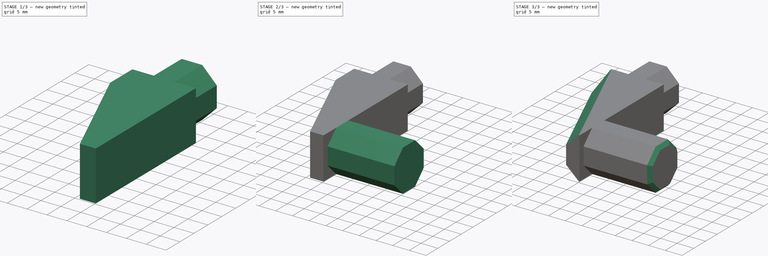
[diagram: build sequence overview — one tinted view per stage of 3, left to right]
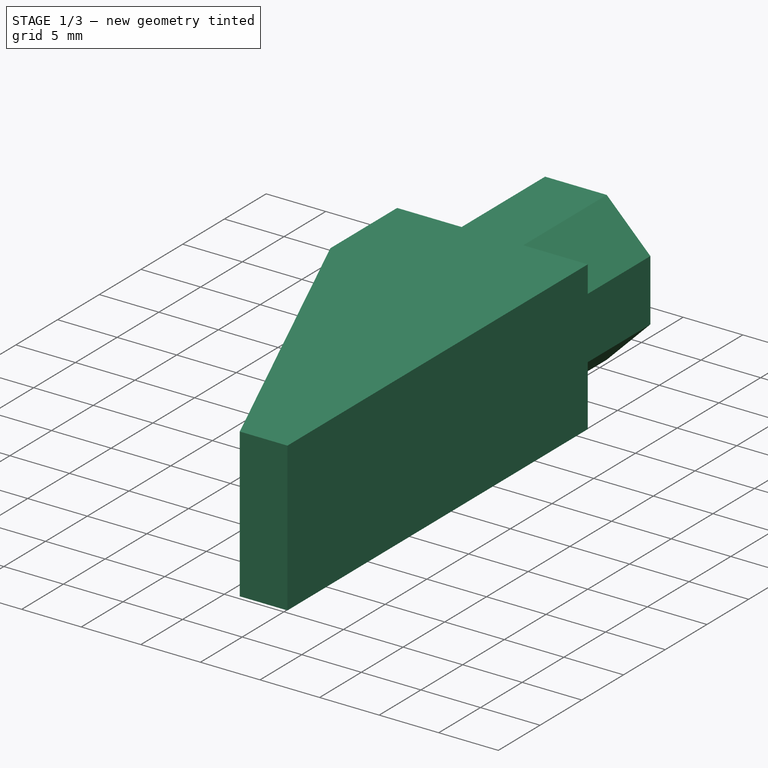
[diagram: stage 1 of 3 — iso view after this stage's code; geometry added in this stage tinted green]
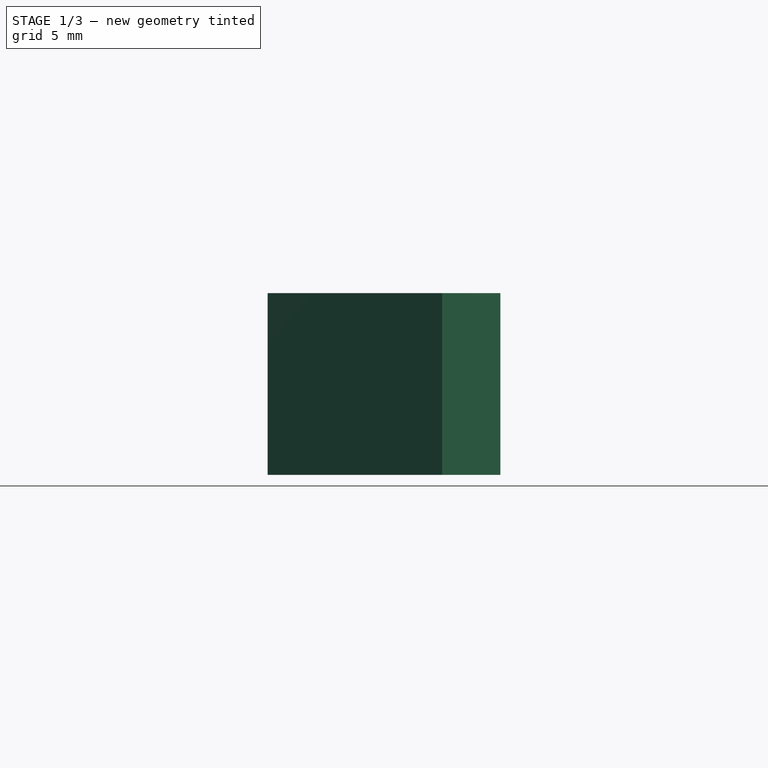
[diagram: stage 1 of 3 — front view after this stage's code; geometry added in this stage tinted green]
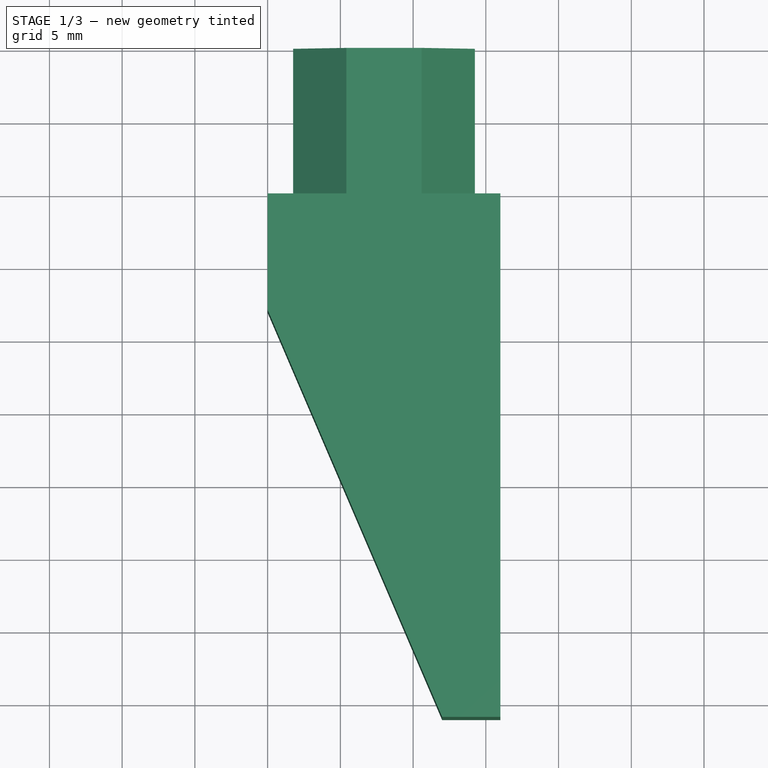
[diagram: stage 1 of 3 — top view after this stage's code; geometry added in this stage tinted green]
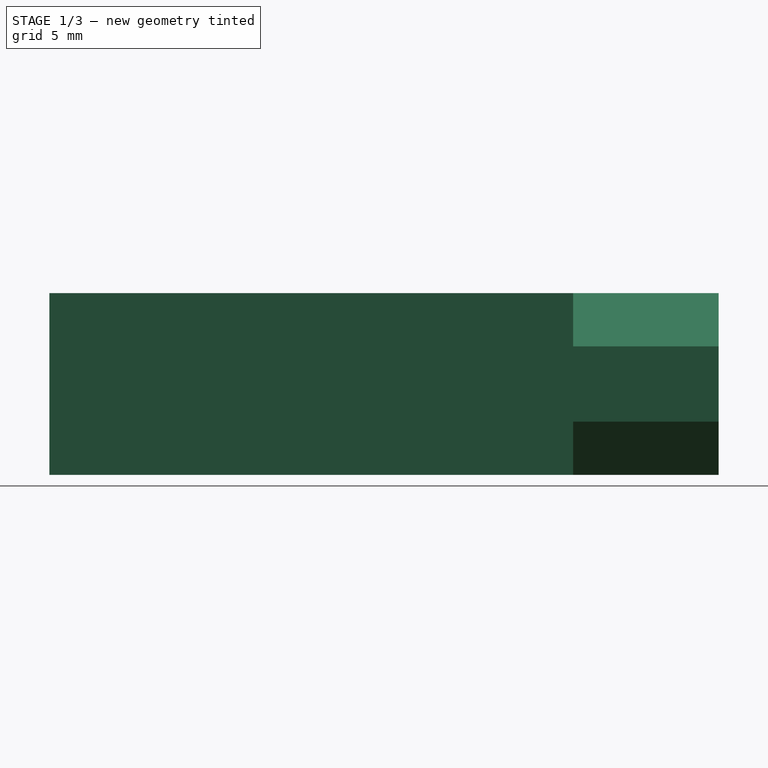
[diagram: stage 1 of 3 — right view after this stage's code; geometry added in this stage tinted green]
FCSTD DOCUMENT  (FreeCAD 0.17R12960 (Git))
Label: ma_Case2
License: All rights reserved
LicenseURL: http://en.wikipedia.org/wiki/All_rights_reserved
objects: Sketcher::SketchObject×3, PartDesign::Pad×3, PartDesign::Chamfer×3, PartDesign::Body×1
note: 13 computed .brp shape members not serialized (recipe doc carries the construction recipe); baked Part::Feature solids carry a one-line shape summary decoded from their .brp

FEATURE [Sketcher::SketchObject] Sketch
  MapMode = 5
  Support = -> [XY_Plane]
  sketch-geometry (5):
    g0: LineSegment StartX=0 StartY=0 StartZ=0 EndX=16 EndY=0 EndZ=0
    g1: LineSegment StartX=16 StartY=0 StartZ=0 EndX=16 EndY=-36 EndZ=0
    g2: LineSegment StartX=16 StartY=-36 StartZ=0 EndX=12 EndY=-36 EndZ=0
    g3: LineSegment StartX=12 StartY=-36 StartZ=0 EndX=0 EndY=-8 EndZ=0
    g4: LineSegment StartX=0 StartY=-8 StartZ=0 EndX=0 EndY=0 EndZ=0
  constraints (14):
    c: Coincident(g-1,g0)
    c: Horizontal(g0)
    c: Coincident(g0,g1)
    c: Vertical(g1)
    c: Coincident(g1,g2)
    c: Coincident(g2,g3)
    c: PointOnObject(g3,g-2)
    c: Coincident(g3,g4)
    c: Coincident(g4,g0)
    c: Horizontal(g2)
    c: DistanceY(g1,g1) = 36
    c: DistanceX(g0,g0) = 16
    c: DistanceX(g2,g2) = 4
    c: DistanceY(g4,g4) = 8
FEATURE [PartDesign::Pad] Pad
  Length = 12.5
  Length2 = 100
  Profile = -> Sketch
  Type = 0
FEATURE [Sketcher::SketchObject] Sketch001
  MapMode = 5
  Placement = pos=(0,0,0) rot=(0,0.707107,0.707107;3.14159rad)
  Support = -> [Pad]
  sketch-geometry (9):
    g0: LineSegment StartX=-5.41117 StartY=0 StartZ=0 EndX=-1.75 EndY=3.66117 EndZ=0
    g1: LineSegment StartX=-1.75 StartY=3.66117 StartZ=0 EndX=-1.75 EndY=8.83883 EndZ=0
    g2: LineSegment StartX=-1.75 StartY=8.83883 StartZ=0 EndX=-5.41117 EndY=12.5 EndZ=0
    g3: LineSegment StartX=-5.41117 StartY=12.5 StartZ=0 EndX=-10.5888 EndY=12.5 EndZ=0
    g4: LineSegment StartX=-10.5888 StartY=12.5 StartZ=0 EndX=-14.25 EndY=8.83883 EndZ=0
    g5: LineSegment StartX=-14.25 StartY=8.83883 StartZ=0 EndX=-14.25 EndY=3.66117 EndZ=0
    g6: LineSegment StartX=-14.25 StartY=3.66117 StartZ=0 EndX=-10.5888 EndY=0 EndZ=0
    g7: LineSegment StartX=-10.5888 StartY=0 StartZ=0 EndX=-5.41117 EndY=0 EndZ=0
    g8: Circle [constr] CenterX=-8 CenterY=6.25 CenterZ=0 NormalX=0 NormalY=0 NormalZ=1 AngleXU=0 Radius=6.76495
  constraints (21):
    c: Coincident(g0,g1)
    c: Coincident(g1,g2)
    c: Coincident(g2,g3)
    c: Coincident(g3,g4)
    c: Coincident(g4,g5)
    c: Coincident(g5,g6)
    c: Coincident(g6,g7)
    c: Coincident(g7,g0)
    c: Equal(g0, g1-g7) x7
    c: PointOnObject(g0,g8)
    c: PointOnObject(g1,g8)
    c: PointOnObject(g2,g8)
    c: PointOnObject(g3,g8)
    c: PointOnObject(g4,g8)
    c: PointOnObject(g5,g8)
    c: PointOnObject(g6,g8)
    c: PointOnObject(g7,g8)
    c: Horizontal(g7)
    c: DistanceY(g-1,g8) = 6.25
    c: DistanceX(g8,g-1) = 8
    c: PointOnObject(g0,g-1)
FEATURE [PartDesign::Pad] Pad001
  BaseFeature = -> Pad
  Length = 10
  Length2 = 100
  Profile = -> Sketch001
  Type = 0
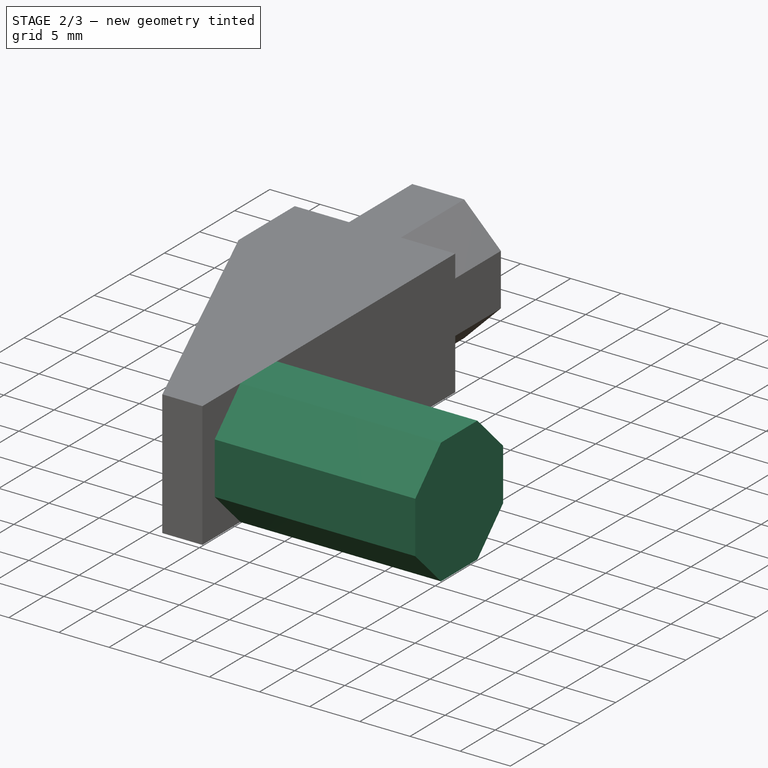
[diagram: stage 2 of 3 — iso view after this stage's code; geometry added in this stage tinted green]
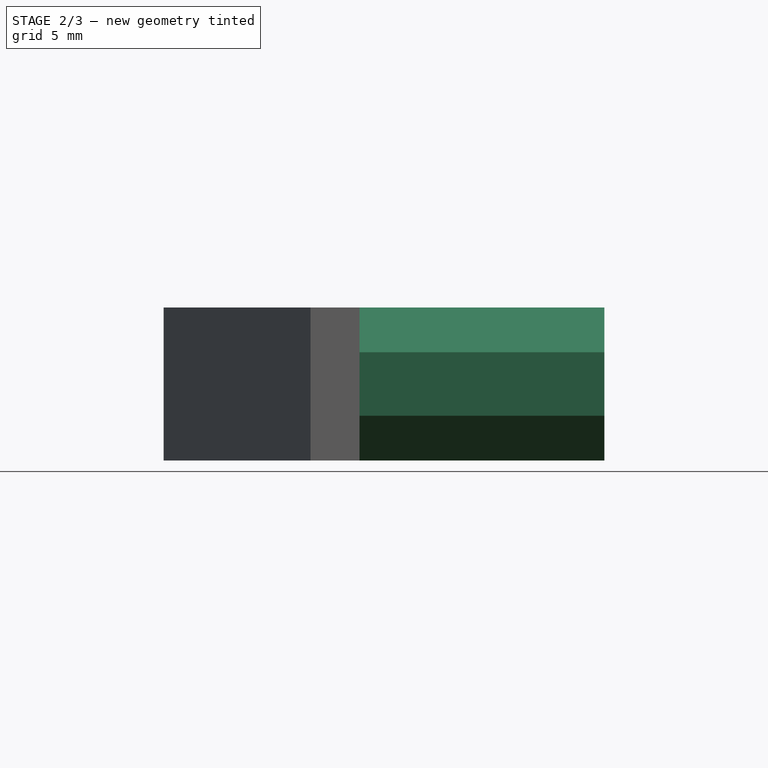
[diagram: stage 2 of 3 — front view after this stage's code; geometry added in this stage tinted green]
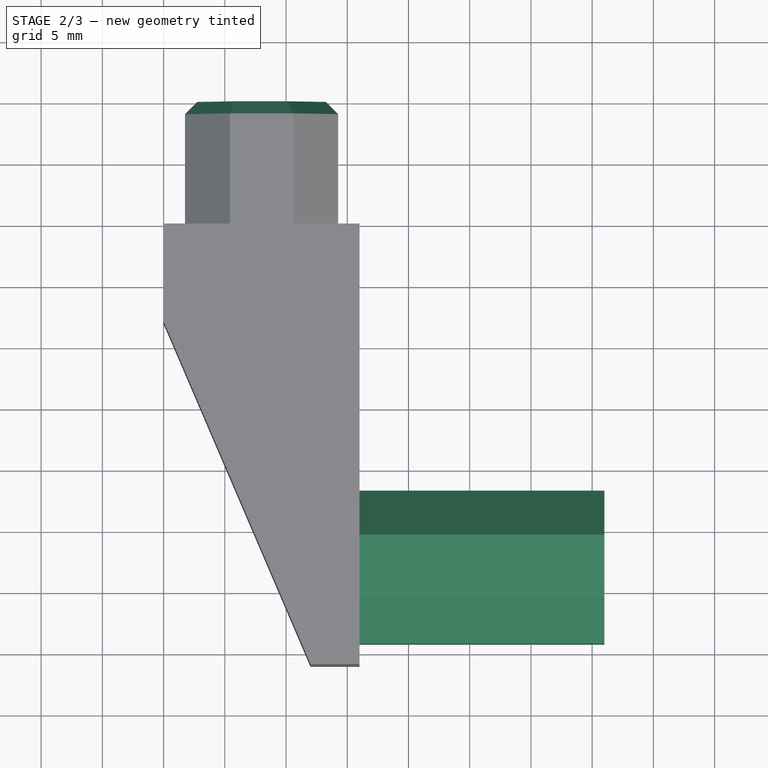
[diagram: stage 2 of 3 — top view after this stage's code; geometry added in this stage tinted green]
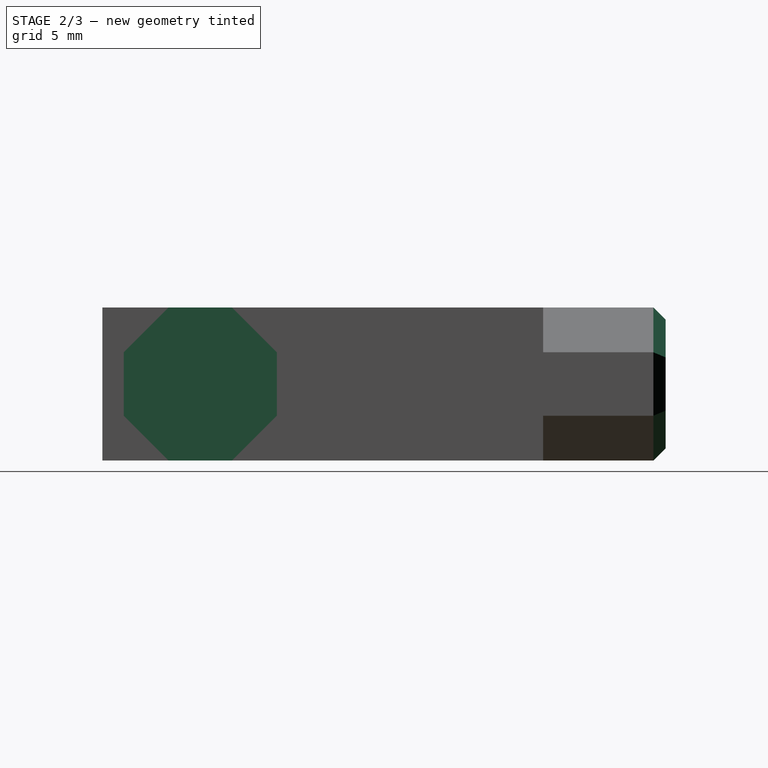
[diagram: stage 2 of 3 — right view after this stage's code; geometry added in this stage tinted green]
FEATURE [Sketcher::SketchObject] Sketch002
  ExternalGeometry = -> [Pad001]
  MapMode = 5
  Placement = pos=(16,0,0) rot=(0.57735,0.57735,0.57735;2.0944rad)
  Support = -> [Pad001]
  sketch-geometry (9):
    g0: LineSegment StartX=-25.4112 StartY=0 StartZ=0 EndX=-21.75 EndY=3.66117 EndZ=0
    g1: LineSegment StartX=-21.75 StartY=3.66117 StartZ=0 EndX=-21.75 EndY=8.83883 EndZ=0
    g2: LineSegment StartX=-21.75 StartY=8.83883 StartZ=0 EndX=-25.4112 EndY=12.5 EndZ=0
    g3: LineSegment StartX=-25.4112 StartY=12.5 StartZ=0 EndX=-30.5888 EndY=12.5 EndZ=0
    g4: LineSegment StartX=-30.5888 StartY=12.5 StartZ=0 EndX=-34.25 EndY=8.83883 EndZ=0
    g5: LineSegment StartX=-34.25 StartY=8.83883 StartZ=0 EndX=-34.25 EndY=3.66117 EndZ=0
    g6: LineSegment StartX=-34.25 StartY=3.66117 StartZ=0 EndX=-30.5888 EndY=0 EndZ=0
    g7: LineSegment StartX=-30.5888 StartY=0 StartZ=0 EndX=-25.4112 EndY=0 EndZ=0
    g8: Circle [constr] CenterX=-28 CenterY=6.25 CenterZ=0 NormalX=0 NormalY=0 NormalZ=1 AngleXU=0 Radius=6.76495
  constraints (21):
    c: Coincident(g0,g1)
    c: Coincident(g1,g2)
    c: Coincident(g2,g3)
    c: Coincident(g3,g4)
    c: Coincident(g4,g5)
    c: Coincident(g5,g6)
    c: Coincident(g6,g7)
    c: Coincident(g7,g0)
    c: Equal(g0, g1-g7) x7
    c: PointOnObject(g0,g8)
    c: PointOnObject(g1,g8)
    c: PointOnObject(g2,g8)
    c: PointOnObject(g3,g8)
    c: PointOnObject(g4,g8)
    c: PointOnObject(g5,g8)
    c: PointOnObject(g6,g8)
    c: PointOnObject(g7,g8)
    c: Horizontal(g7)
    c: PointOnObject(g0,g-1)
    c: DistanceY(g-1,g8) = 6.25
    c: DistanceX(g-3,g8) = 8
FEATURE [PartDesign::Pad] Pad002
  BaseFeature = -> Pad001
  Length = 20
  Length2 = 100
  Profile = -> Sketch002
  Type = 0
FEATURE [PartDesign::Chamfer] Chamfer
  Base = -> Pad002 [Face17]
  BaseFeature = -> Pad002
  Size = 1
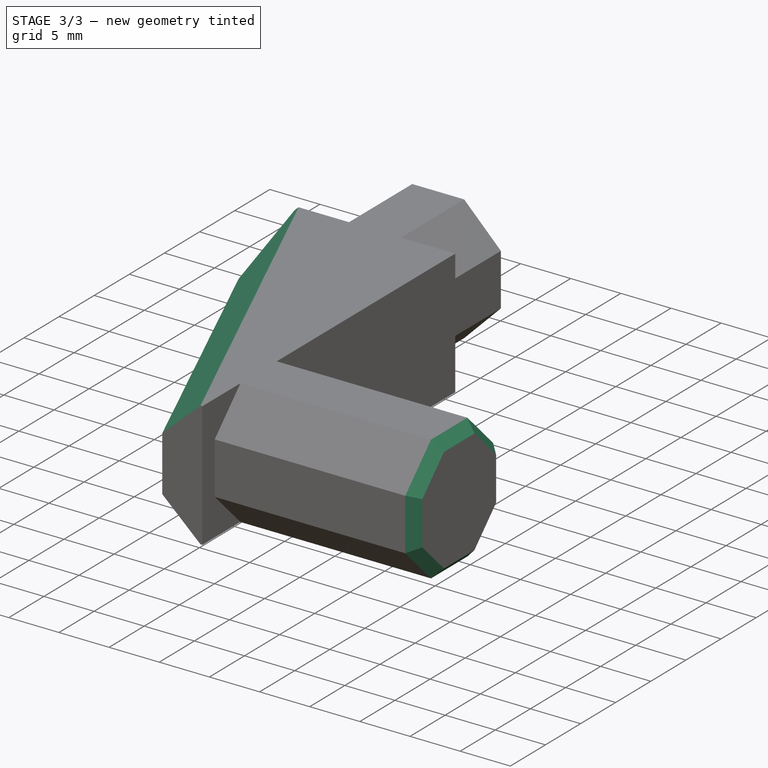
[diagram: stage 3 of 3 — iso view after this stage's code; geometry added in this stage tinted green]
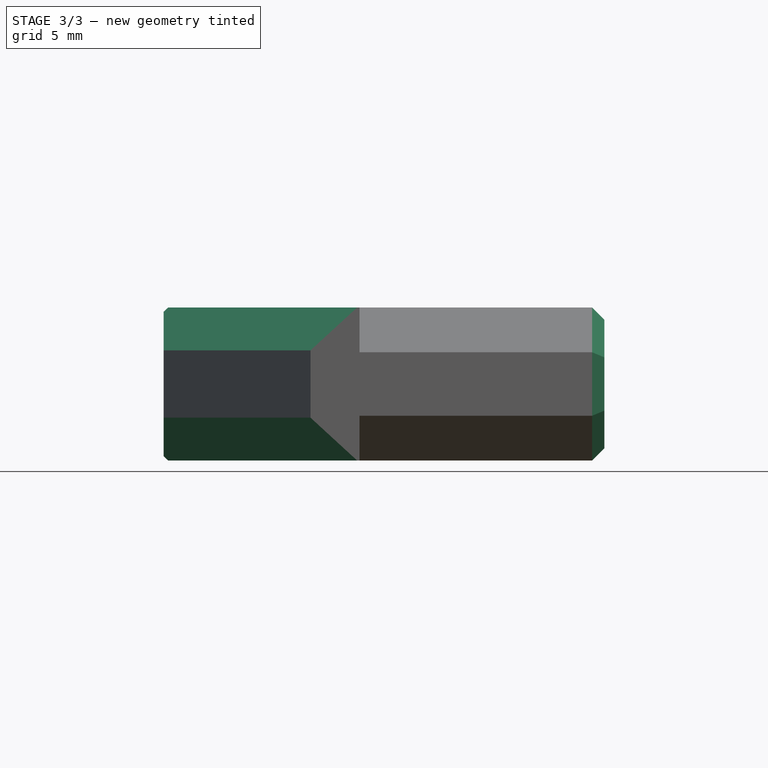
[diagram: stage 3 of 3 — front view after this stage's code; geometry added in this stage tinted green]
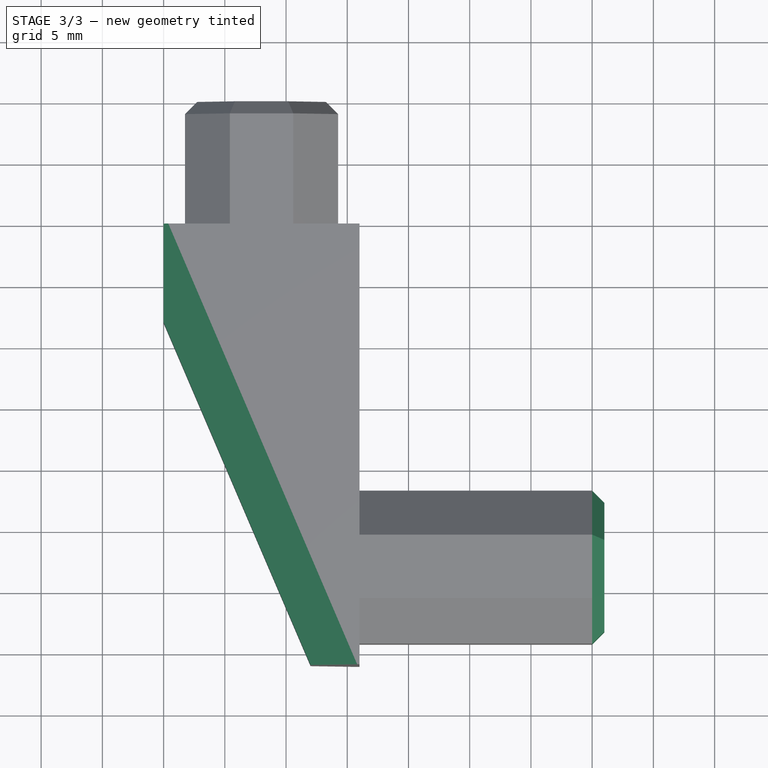
[diagram: stage 3 of 3 — top view after this stage's code; geometry added in this stage tinted green]
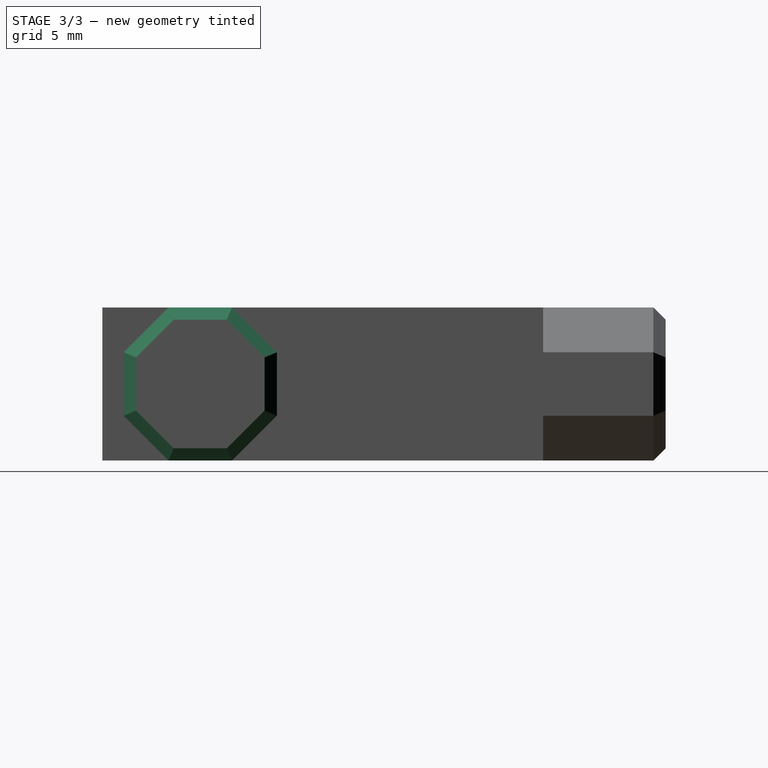
[diagram: stage 3 of 3 — right view after this stage's code; geometry added in this stage tinted green]
FEATURE [PartDesign::Chamfer] Chamfer001
  Base = -> Chamfer [Face35]
  BaseFeature = -> Chamfer
  Size = 1
FEATURE [PartDesign::Chamfer] Chamfer002
  Base = -> Chamfer001 [Edge14,Edge48]
  BaseFeature = -> Chamfer001
  Size = 3.5
FEATURE [PartDesign::Body] Body
  Group = -> [Sketch,Pad,Sketch001,Pad001,Sketch002,Pad002,Chamfer,Chamfer001,Chamfer002]
  Origin = -> Origin
  Tip = -> Chamfer002
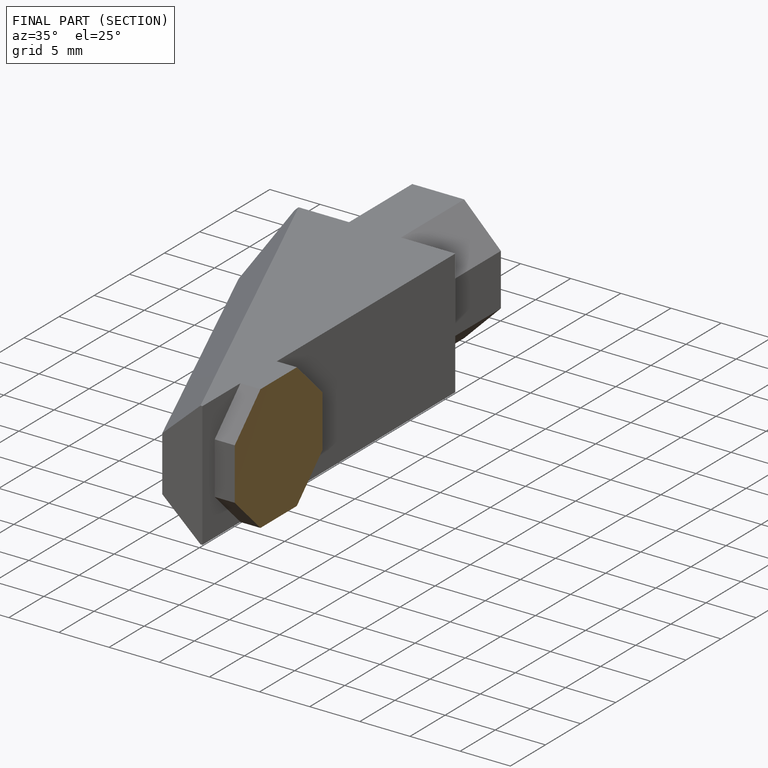
[diagram: finished part — half-section view (interior)]
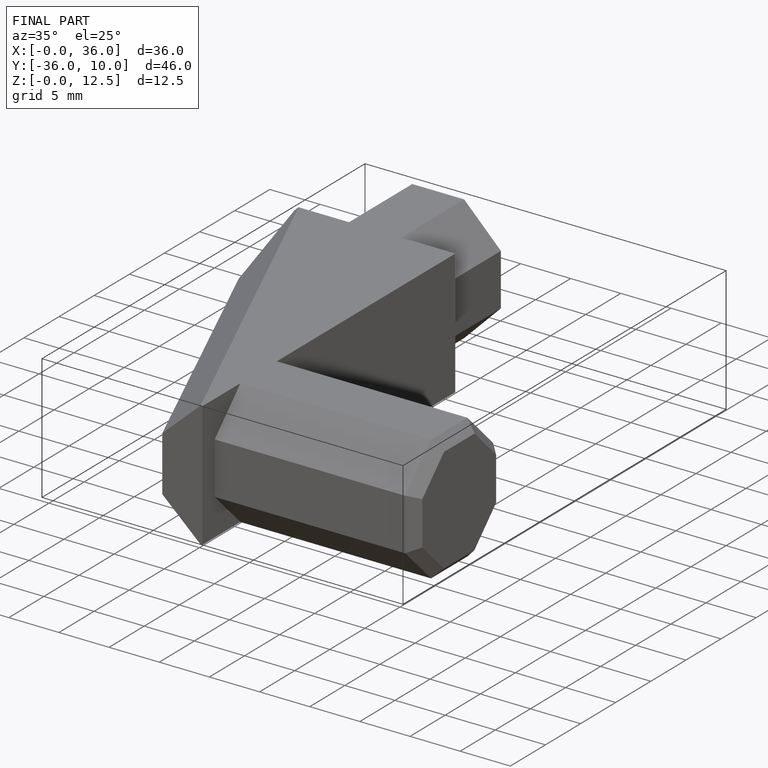
[diagram: finished part — iso view with bounding-box wireframe]
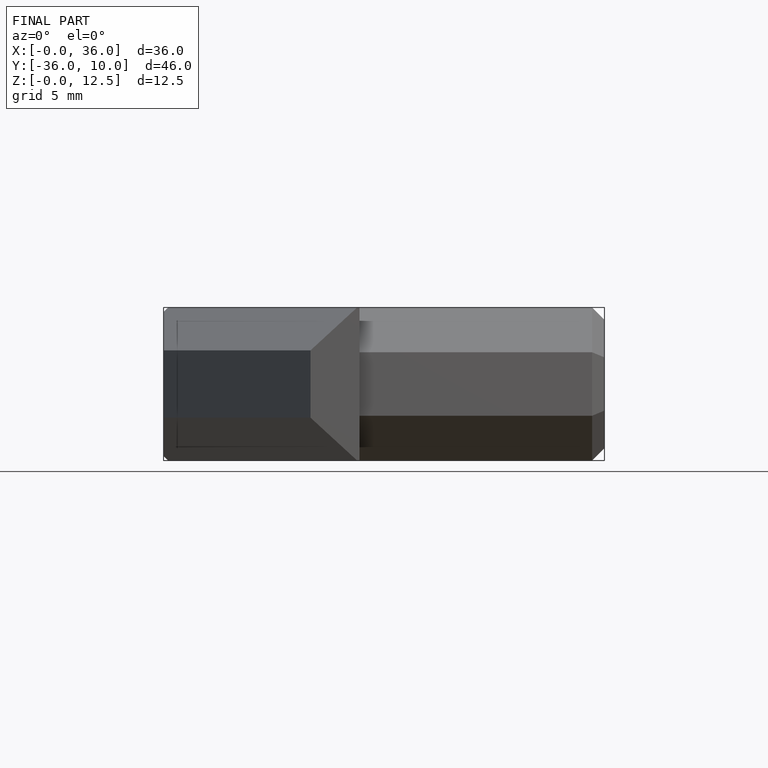
[diagram: finished part — front view with bounding-box wireframe]
